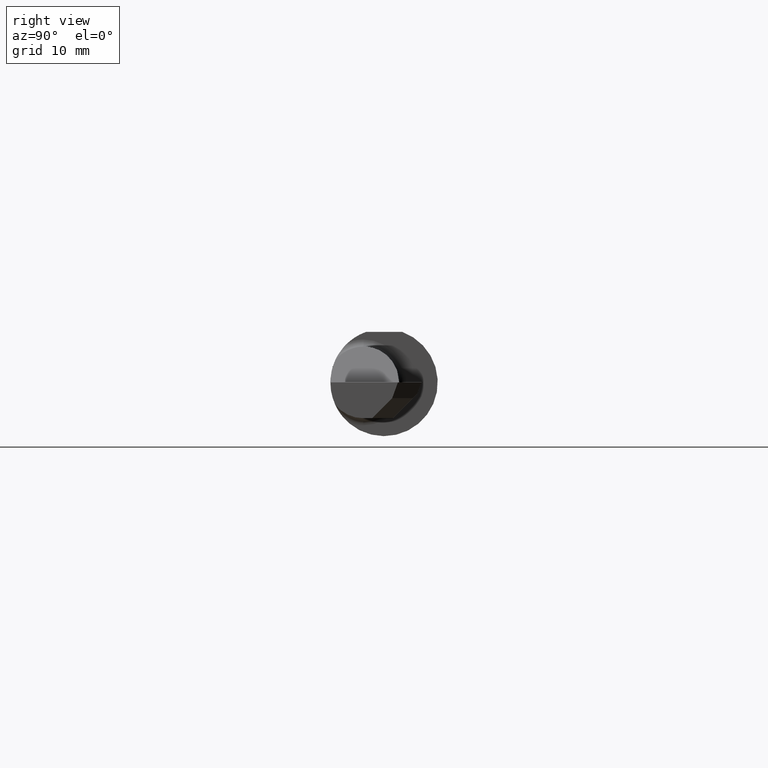
[diagram: clean part render]
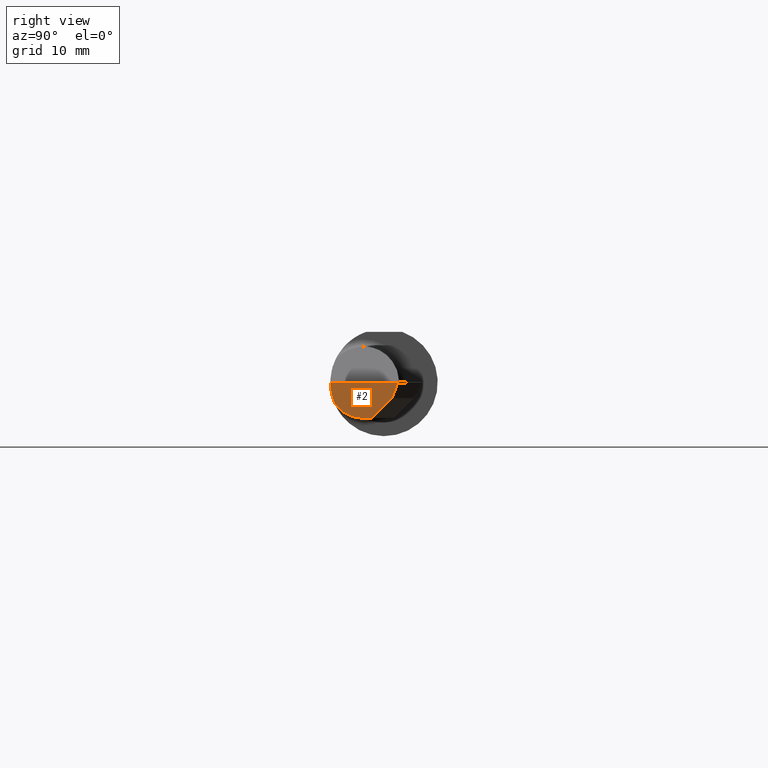
[diagram: same view with one face highlighted and labeled with its STEP entity id]
A machine part, right view. The second image highlights one B-rep face of the part: STEP entity #2.
In plain terms, the highlighted planar face has unit normal (1, 0, 0).
Its self-contained STEP definition (entity closure, byte-faithful):
#2 = ADVANCED_FACE ( 'NONE', ( #607 ), #755, .T. ) ;
#33 = EDGE_CURVE ( 'NONE', #105, #858, #958, .T. ) ;
#84 = DIRECTION ( 'NONE',  ( 1.000000000000000000, 0.000000000000000000, 0.000000000000000000 ) ) ;
#98 = ORIENTED_EDGE ( 'NONE', *, *, #730, .T. ) ;
#105 = VERTEX_POINT ( 'NONE', #306 ) ;
#107 = DIRECTION ( 'NONE',  ( 0.000000000000000000, 0.000000000000000000, -1.000000000000000000 ) ) ;
#109 = AXIS2_PLACEMENT_3D ( 'NONE', #827, #84, #156 ) ;
#134 = ORIENTED_EDGE ( 'NONE', *, *, #913, .F. ) ;
#151 = CARTESIAN_POINT ( 'NONE',  ( 2.500000000000000000, 0.04278184266129586577, -0.01547243479515399492 ) ) ;
#156 = DIRECTION ( 'NONE',  ( 0.000000000000000000, 0.000000000000000000, -1.000000000000000000 ) ) ;
#159 = CARTESIAN_POINT ( 'NONE',  ( 2.500000000000000000, 0.2999999999999999889, -6.429183357567480113E-17 ) ) ;
#163 = LINE ( 'NONE', #159, #356 ) ;
#168 = DIRECTION ( 'NONE',  ( -0.000000000000000000, 1.000000000000000000, -0.000000000000000000 ) ) ;
#181 = CARTESIAN_POINT ( 'NONE',  ( 2.500000000000000000, -0.07234999999999999765, -0.1249999999999999861 ) ) ;
#186 = ORIENTED_EDGE ( 'NONE', *, *, #33, .T. ) ;
#233 = CARTESIAN_POINT ( 'NONE',  ( 2.500000000000000000, -0.1873499999999998222, -6.429183357567480113E-17 ) ) ;
#255 = VERTEX_POINT ( 'NONE', #752 ) ;
#262 = VECTOR ( 'NONE', #444, 39.37007874015748854 ) ;
#284 = EDGE_LOOP ( 'NONE', ( #98, #699, #134, #859, #433, #186 ) ) ;
#306 = CARTESIAN_POINT ( 'NONE',  ( 2.500000000000000000, -0.1707639599170698019, -0.07706940050007768384 ) ) ;
#332 = EDGE_CURVE ( 'NONE', #255, #632, #629, .T. ) ;
#356 = VECTOR ( 'NONE', #168, 39.37007874015748143 ) ;
#376 = DIRECTION ( 'NONE',  ( 1.000000000000000000, -0.000000000000000000, -0.000000000000000000 ) ) ;
#400 = DIRECTION ( 'NONE',  ( -0.000000000000000000, 1.000000000000000000, -2.417245856451656750E-16 ) ) ;
#404 = LINE ( 'NONE', #708, #583 ) ;
#433 = ORIENTED_EDGE ( 'NONE', *, *, #683, .T. ) ;
#444 = DIRECTION ( 'NONE',  ( 0.000000000000000000, -0.3401001459858867815, -0.9403892229818345827 ) ) ;
#519 = LINE ( 'NONE', #151, #262 ) ;
#546 = CARTESIAN_POINT ( 'NONE',  ( 2.500000000000000000, 0.02848634631988948215, -0.05500000000000006967 ) ) ;
#583 = VECTOR ( 'NONE', #400, 39.37007874015748143 ) ;
#607 = FACE_OUTER_BOUND ( 'NONE', #284, .T. ) ;
#615 = VERTEX_POINT ( 'NONE', #233 ) ;
#629 = LINE ( 'NONE', #546, #771 ) ;
#632 = VERTEX_POINT ( 'NONE', #896 ) ;
#633 = CARTESIAN_POINT ( 'NONE',  ( 2.500000000000000000, 0.000000000000000000, 0.000000000000000000 ) ) ;
#636 = EDGE_CURVE ( 'NONE', #615, #806, #163, .T. ) ;
#683 = EDGE_CURVE ( 'NONE', #615, #105, #691, .T. ) ;
#691 = CIRCLE ( 'NONE', #899, 0.1873499999999999888 ) ;
#699 = ORIENTED_EDGE ( 'NONE', *, *, #332, .F. ) ;
#708 = CARTESIAN_POINT ( 'NONE',  ( 2.500000000000000000, 0.1395529379841212447, -0.1250000000000000278 ) ) ;
#730 = EDGE_CURVE ( 'NONE', #858, #632, #404, .T. ) ;
#752 = CARTESIAN_POINT ( 'NONE',  ( 2.500000000000000000, 0.02848634631988948215, -0.05500000000000006967 ) ) ;
#753 = AXIS2_PLACEMENT_3D ( 'NONE', #831, #376, #842 ) ;
#755 = PLANE ( 'NONE',  #109 ) ;
#768 = CARTESIAN_POINT ( 'NONE',  ( 2.500000000000000000, 0.04837758664047866336, 0.000000000000000000 ) ) ;
#771 = VECTOR ( 'NONE', #926, 39.37007874015748854 ) ;
#806 = VERTEX_POINT ( 'NONE', #768 ) ;
#827 = CARTESIAN_POINT ( 'NONE',  ( 2.500000000000000000, 0.000000000000000000, 0.000000000000000000 ) ) ;
#831 = CARTESIAN_POINT ( 'NONE',  ( 2.500000000000000000, -0.07234999999999998377, 0.000000000000000000 ) ) ;
#842 = DIRECTION ( 'NONE',  ( 0.000000000000000000, 0.000000000000000000, 1.000000000000000000 ) ) ;
#850 = DIRECTION ( 'NONE',  ( 1.000000000000000000, 0.000000000000000000, 0.000000000000000000 ) ) ;
#858 = VERTEX_POINT ( 'NONE', #181 ) ;
#859 = ORIENTED_EDGE ( 'NONE', *, *, #636, .F. ) ;
#896 = CARTESIAN_POINT ( 'NONE',  ( 2.500000000000000000, -0.04151365368011088880, -0.1249999999999999584 ) ) ;
#899 = AXIS2_PLACEMENT_3D ( 'NONE', #633, #850, #107 ) ;
#913 = EDGE_CURVE ( 'NONE', #806, #255, #519, .T. ) ;
#926 = DIRECTION ( 'NONE',  ( 0.000000000000000000, -0.7071067811865497932, -0.7071067811865451302 ) ) ;
#958 = CIRCLE ( 'NONE', #753, 0.1250000000000000000 ) ;